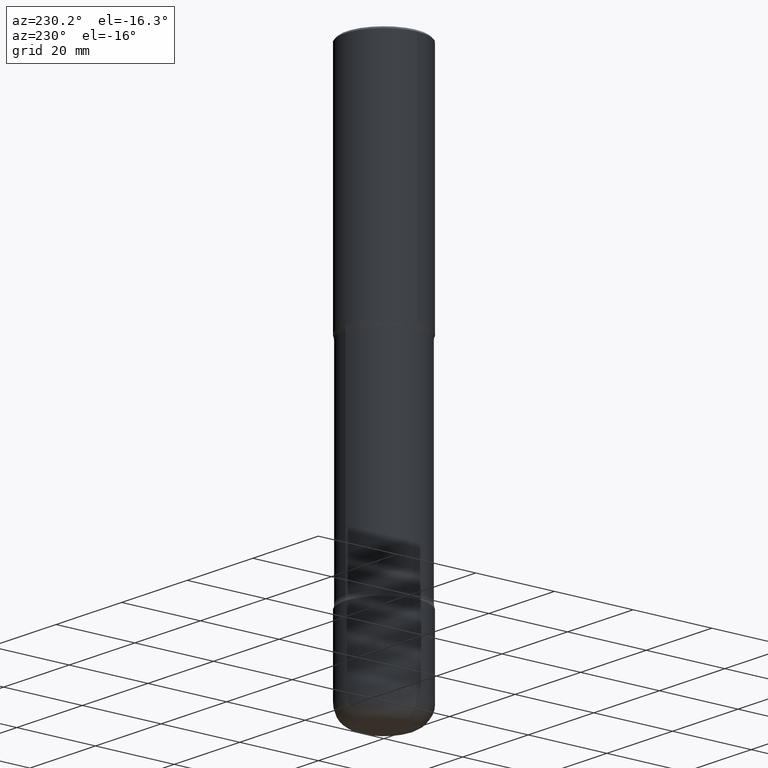
[diagram: clean part render]
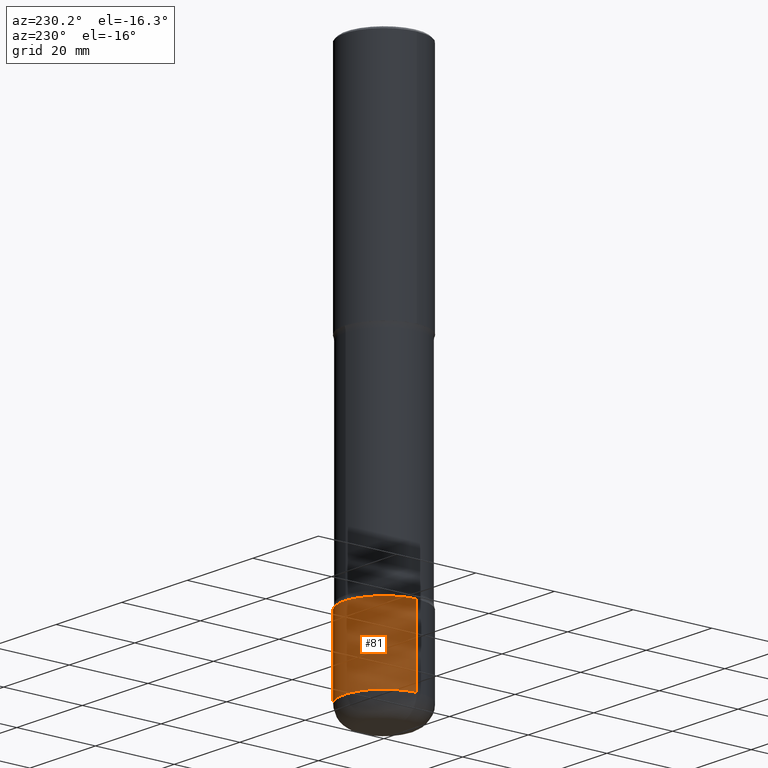
[diagram: same view with one face highlighted and labeled with its STEP entity id]
A machine part, auxiliary view. The second image highlights one B-rep face of the part: STEP entity #81.
In plain terms, the highlighted cylindrical surface (partial cylindrical patch) has radius 10 mm, axis along (-0, 0, 1).
Its self-contained STEP definition (entity closure, byte-faithful):
#17 = VERTEX_POINT ( 'NONE', #467 ) ;
#18 = EDGE_CURVE ( 'NONE', #138, #17, #416, .T. ) ;
#19 = DIRECTION ( 'NONE',  ( -2.445468806185136597E-29, 3.491481338843145583E-15, 1.000000000000000000 ) ) ;
#42 = CARTESIAN_POINT ( 'NONE',  ( 0.3937000000000004385, -2.749192406205086372E-15, 1.919750796630862133E-29 ) ) ;
#69 = CIRCLE ( 'NONE', #384, 0.3937000000000004940 ) ;
#74 = VERTEX_POINT ( 'NONE', #82 ) ;
#76 = VERTEX_POINT ( 'NONE', #86 ) ;
#77 = CIRCLE ( 'NONE', #310, 0.3937000000000003830 ) ;
#81 = ADVANCED_FACE ( 'NONE', ( #524 ), #431, .T. ) ;
#82 = CARTESIAN_POINT ( 'NONE',  ( -0.3937000000000003830, -1.445365339640257918E-14, -4.566900000000000404 ) ) ;
#86 = CARTESIAN_POINT ( 'NONE',  ( -0.3937000000000005495, -1.575946741712991118E-14, -5.314899999999998847 ) ) ;
#138 = VERTEX_POINT ( 'NONE', #448 ) ;
#147 = VECTOR ( 'NONE', #302, 39.37007874015748143 ) ;
#151 = ORIENTED_EDGE ( 'NONE', *, *, #308, .T. ) ;
#205 = EDGE_CURVE ( 'NONE', #17, #74, #77, .T. ) ;
#223 = DIRECTION ( 'NONE',  ( -2.445468806185136597E-29, 3.491481338843145583E-15, 1.000000000000000000 ) ) ;
#227 = CARTESIAN_POINT ( 'NONE',  ( -0.3937000000000004385, 2.797406750687517547E-15, -1.936584745033358417E-29 ) ) ;
#257 = EDGE_CURVE ( 'NONE', #138, #76, #69, .T. ) ;
#272 = CARTESIAN_POINT ( 'NONE',  ( 1.299742215799337779E-28, -1.855687416781742833E-14, -5.314899999999998847 ) ) ;
#283 = VECTOR ( 'NONE', #402, 39.37007874015748143 ) ;
#302 = DIRECTION ( 'NONE',  ( -2.445468806185136877E-29, 3.491481338843145188E-15, 1.000000000000000000 ) ) ;
#308 = EDGE_CURVE ( 'NONE', #76, #74, #445, .T. ) ;
#310 = AXIS2_PLACEMENT_3D ( 'NONE', #395, #19, #367 ) ;
#312 = ORIENTED_EDGE ( 'NONE', *, *, #257, .T. ) ;
#367 = DIRECTION ( 'NONE',  ( 1.000000000000000000, -6.982962677686261977E-15, 0.000000000000000000 ) ) ;
#383 = DIRECTION ( 'NONE',  ( 1.000000000000000000, -6.982962677686266711E-15, 4.876176775795935793E-29 ) ) ;
#384 = AXIS2_PLACEMENT_3D ( 'NONE', #272, #223, #398 ) ;
#391 = AXIS2_PLACEMENT_3D ( 'NONE', #472, #433, #383 ) ;
#395 = CARTESIAN_POINT ( 'NONE',  ( 1.116821149096690103E-28, -1.594524612636276117E-14, -4.566900000000000404 ) ) ;
#398 = DIRECTION ( 'NONE',  ( 1.000000000000000000, -6.982962677686269866E-15, 0.000000000000000000 ) ) ;
#402 = DIRECTION ( 'NONE',  ( -2.445468806185136877E-29, 3.491481338843145188E-15, 1.000000000000000000 ) ) ;
#414 = ORIENTED_EDGE ( 'NONE', *, *, #18, .F. ) ;
#416 = LINE ( 'NONE', #42, #147 ) ;
#422 = EDGE_LOOP ( 'NONE', ( #312, #151, #496, #414 ) ) ;
#431 = CYLINDRICAL_SURFACE ( 'NONE', #391, 0.3937000000000004385 ) ;
#433 = DIRECTION ( 'NONE',  ( -2.445468806185136597E-29, 3.491481338843145583E-15, 1.000000000000000000 ) ) ;
#445 = LINE ( 'NONE', #227, #283 ) ;
#448 = CARTESIAN_POINT ( 'NONE',  ( 0.3937000000000005495, -2.130606657402251786E-14, -5.314899999999998847 ) ) ;
#467 = CARTESIAN_POINT ( 'NONE',  ( 0.3937000000000003830, -1.869443853256784755E-14, -4.566900000000000404 ) ) ;
#472 = CARTESIAN_POINT ( 'NONE',  ( 0.000000000000000000, 0.000000000000000000, 0.000000000000000000 ) ) ;
#496 = ORIENTED_EDGE ( 'NONE', *, *, #205, .F. ) ;
#524 = FACE_OUTER_BOUND ( 'NONE', #422, .T. ) ;